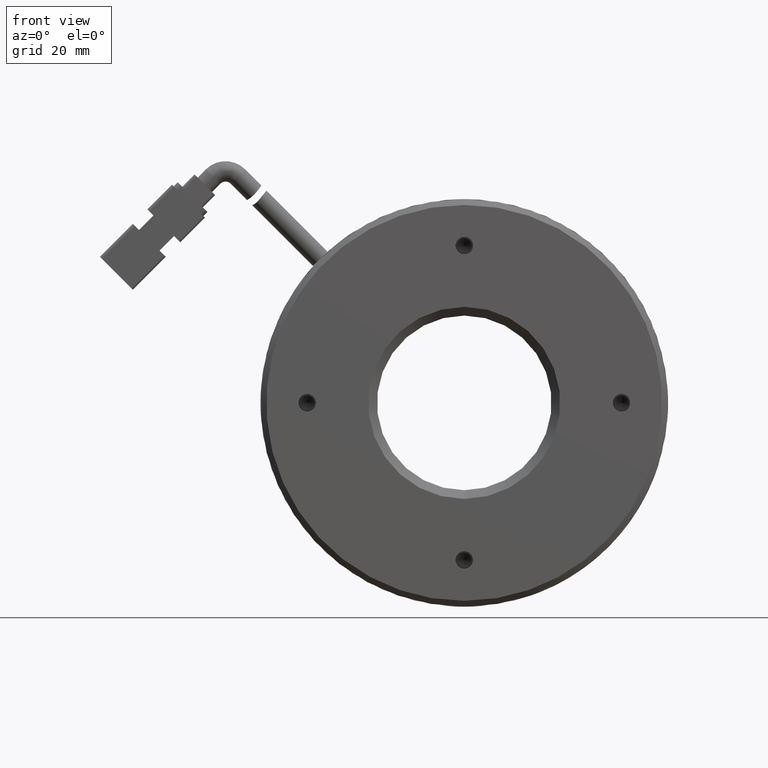
[diagram: clean part render]
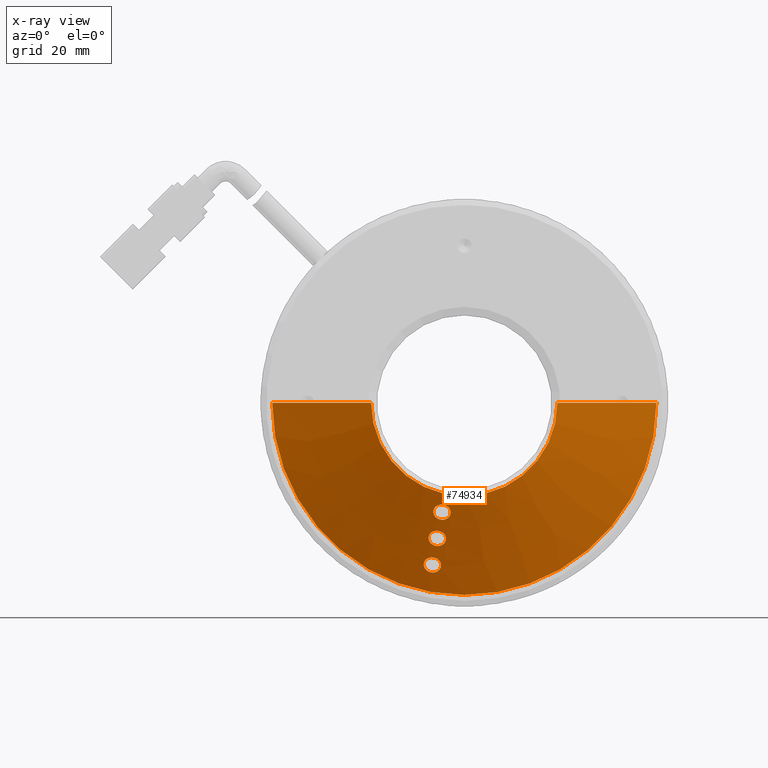
[diagram: x-ray — body ghosted, one internal face saturated and labeled with its STEP entity id]
A machine part, front view, then the same camera in x-ray: the body is ghosted and one INTERNAL B-rep face — a face not visible from any outside direction — is saturated and labeled: STEP entity #74934.
In plain terms, the highlighted conical surface has half-angle 60 deg.
Its self-contained STEP definition (entity closure, byte-faithful):
#136 = CARTESIAN_POINT ( 'NONE',  ( -7.134818961046084600, 35.42792446796054400, -17.50181382621849100 ) ) ;
#419 = CARTESIAN_POINT ( 'NONE',  ( -5.835235942650876400, 35.97558870384118300, -18.67824688774431200 ) ) ;
#717 = CARTESIAN_POINT ( 'NONE',  ( -7.330281434694323500, 36.91815542108513900, -20.09437774292183600 ) ) ;
#1441 = CARTESIAN_POINT ( 'NONE',  ( -9.597210679873386500, 39.15567558228984500, -23.55556102369209300 ) ) ;
#1742 = CARTESIAN_POINT ( 'NONE',  ( -8.342699614779457200, 38.09998667071315000, -21.97675561811360700 ) ) ;
#2202 = CARTESIAN_POINT ( 'NONE',  ( -7.664424419826295900, 38.07858563599663200, -22.07696449563100300 ) ) ;
#2372 = EDGE_CURVE ( 'NONE', #59536, #9245, #24715, .T. ) ;
#2513 = CARTESIAN_POINT ( 'NONE',  ( -6.801219585698977000, 39.05141233846484300, -23.92445161584404500 ) ) ;
#2988 = AXIS2_PLACEMENT_3D ( 'NONE', #30985, #79852, #38001 ) ;
#3112 = CARTESIAN_POINT ( 'NONE',  ( -7.984885076638433600, 40.85722114701429300, -26.90776473091874600 ) ) ;
#3202 = CARTESIAN_POINT ( 'NONE',  ( -3.499229287090496900, 44.16025315849288500, 0.0000000000000000000 ) ) ;
#3405 = CARTESIAN_POINT ( 'NONE',  ( -8.054081147811649200, 42.01560288985813700, -28.92922226809330900 ) ) ;
#3459 = VERTEX_POINT ( 'NONE', #77854 ) ;
#3863 = ORIENTED_EDGE ( 'NONE', *, *, #20131, .T. ) ;
#4420 = CARTESIAN_POINT ( 'NONE',  ( -8.820044337434856300, 36.28661239588996800, -18.61703804049265900 ) ) ;
#4495 = CARTESIAN_POINT ( 'NONE',  ( -9.958706143887457800, 42.13702085028782600, -28.77977847779328300 ) ) ;
#4796 = CARTESIAN_POINT ( 'NONE',  ( -9.888477392999005700, 40.98785993700204200, -26.75309681361257900 ) ) ;
#5663 = ORIENTED_EDGE ( 'NONE', *, *, #7230, .T. ) ;
#6202 = EDGE_CURVE ( 'NONE', #76830, #3459, #22799, .T. ) ;
#6907 = DIRECTION ( 'NONE',  ( 0.0000000000000000000, 0.0000000000000000000, 1.000000000000000000 ) ) ;
#7203 = CARTESIAN_POINT ( 'NONE',  ( -7.231740934485957300, 35.43188037752740600, -17.48840451115696800 ) ) ;
#7230 = EDGE_CURVE ( 'NONE', #36514, #52168, #45648, .T. ) ;
#7496 = CARTESIAN_POINT ( 'NONE',  ( -5.844527138647355200, 36.17138607678714400, -19.01881917347951000 ) ) ;
#8515 = CARTESIAN_POINT ( 'NONE',  ( -9.636231434524127300, 38.92079968229757700, -23.12451782596491200 ) ) ;
#9238 = CARTESIAN_POINT ( 'NONE',  ( -7.397682488388986700, 38.11765071484067800, -22.19429705028412100 ) ) ;
#9245 = VERTEX_POINT ( 'NONE', #54461 ) ;
#9545 = CARTESIAN_POINT ( 'NONE',  ( -6.956269785706669300, 39.18511632502548300, -24.13653327883732700 ) ) ;
#10131 = CARTESIAN_POINT ( 'NONE',  ( -7.666434507780802000, 41.02093198163615300, -27.24586748118485200 ) ) ;
#10432 = CARTESIAN_POINT ( 'NONE',  ( -8.580842164738918100, 42.18227298007646900, -29.13467800590320100 ) ) ;
#10933 = FACE_BOUND ( 'NONE', #50697, .T. ) ;
#11131 = CARTESIAN_POINT ( 'NONE',  ( -7.525924403843946600, 36.92968036261059700, -20.07668644359732100 ) ) ;
#11416 = CARTESIAN_POINT ( 'NONE',  ( -8.772283463292176000, 36.13925471230925300, -18.36520888411719100 ) ) ;
#11491 = CARTESIAN_POINT ( 'NONE',  ( -10.27591186427288200, 41.98449744351909600, -28.43533333416757000 ) ) ;
#11782 = CARTESIAN_POINT ( 'NONE',  ( -9.363155395464341200, 40.80827476721744800, -26.55495974701319600 ) ) ;
#11982 = EDGE_CURVE ( 'NONE', #63472, #53534, #58509, .T. ) ;
#14210 = CARTESIAN_POINT ( 'NONE',  ( -6.944053067716058800, 35.43016771637731900, -17.54431841771448200 ) ) ;
#14503 = CARTESIAN_POINT ( 'NONE',  ( -5.910814814206351500, 36.31706660563218500, -19.26486670139071900 ) ) ;
#15198 = CARTESIAN_POINT ( 'NONE',  ( -8.341238241009989500, 39.57152115109806100, -24.57989743092779000 ) ) ;
#15513 = CARTESIAN_POINT ( 'NONE',  ( -9.588483579784503200, 38.77326935888943600, -22.87279645554166800 ) ) ;
#16211 = AXIS2_PLACEMENT_3D ( 'NONE', #3202, #86790, #45004 ) ;
#16276 = CARTESIAN_POINT ( 'NONE',  ( -7.158223570835176900, 38.18535756942272700, -22.35382932966041400 ) ) ;
#16367 = LINE ( 'NONE', #66388, #53483 ) ;
#16426 = ORIENTED_EDGE ( 'NONE', *, *, #22820, .T. ) ;
#16557 = CARTESIAN_POINT ( 'NONE',  ( -7.227331719785564000, 39.34412912826318400, -24.37507153956667600 ) ) ;
#17175 = CARTESIAN_POINT ( 'NONE',  ( -7.477641183319874200, 41.28580833582930900, -27.73746467890255500 ) ) ;
#17258 = DIRECTION ( 'NONE',  ( -0.8660254037844380400, 0.5000000000000012200, 0.0000000000000000000 ) ) ;
#17461 = CARTESIAN_POINT ( 'NONE',  ( -8.972265547266410100, 42.23225576077131600, -29.15128971950499400 ) ) ;
#17608 = B_SPLINE_CURVE_WITH_KNOTS ( 'NONE', 3,
 ( #84718, #49982, #15198, #64043, #22196, #71049, #29208, #78074, #36215, #85028, #43272, #1441, #50286, #8515, #57300, #15513, #64359, #22509, #71359, #29510, #78385, #36512, #85318, #43580, #1742, #50583 ),
 .UNSPECIFIED., .F., .F.,
 ( 4, 2, 2, 2, 2, 2, 2, 2, 2, 2, 2, 2, 4 ),
 ( 1.734723475976807100E-018, 0.0002930632334641610700, 0.0005861264669283204100, 0.0008791897003924797500, 0.001172252933856639100, 0.001758379400784957800, 0.002344505867713276400, 0.002637569101177436400, 0.002930632334641596400, 0.003223695568105756400, 0.003516758801569916400, 0.004102885268498230300, 0.004689011735426544200 ),
 .UNSPECIFIED. ) ;
#18154 = CARTESIAN_POINT ( 'NONE',  ( -7.811397268832875400, 36.92218200804013900, -20.00402051089204400 ) ) ;
#18263 = CARTESIAN_POINT ( 'NONE',  ( -3.499229287090496900, 34.34529858226921600, -16.00000000000000000 ) ) ;
#18419 = CARTESIAN_POINT ( 'NONE',  ( -7.330269560271160500, 35.44111150950148200, -17.48318236584980000 ) ) ;
#18455 = CARTESIAN_POINT ( 'NONE',  ( -8.669626546088174700, 35.99331456922988100, -18.13166831285110400 ) ) ;
#18527 = CARTESIAN_POINT ( 'NONE',  ( -10.46344552251171000, 41.73090800281224200, -27.93734281797557300 ) ) ;
#18648 = LINE ( 'NONE', #72024, #55763 ) ;
#18779 = EDGE_CURVE ( 'NONE', #60880, #56974, #18648, .T. ) ;
#18803 = CARTESIAN_POINT ( 'NONE',  ( -8.972260680612185600, 40.75356784446615400, -26.54102497264570100 ) ) ;
#19805 = CARTESIAN_POINT ( 'NONE',  ( 29.50077071290950300, 44.16025315849288500, 4.041334437186266200E-015 ) ) ;
#20131 = EDGE_CURVE ( 'NONE', #3459, #76830, #30386, .T. ) ;
#20390 = DIRECTION ( 'NONE',  ( -0.0000000000000000000, 1.000000000000000000, -0.0000000000000000000 ) ) ;
#21179 = CARTESIAN_POINT ( 'NONE',  ( -6.668311287414807600, 35.45929853804344100, -17.64747004561191400 ) ) ;
#21486 = CARTESIAN_POINT ( 'NONE',  ( -6.032504885180835600, 36.45769033947498600, -19.49491575315323600 ) ) ;
#22196 = CARTESIAN_POINT ( 'NONE',  ( -8.626768796701361100, 39.56341288560427900, -24.50756994077756100 ) ) ;
#22509 = CARTESIAN_POINT ( 'NONE',  ( -9.485785283882764300, 38.62764470449094000, -22.63909434067238600 ) ) ;
#22799 = B_SPLINE_CURVE_WITH_KNOTS ( 'NONE', 3,
 ( #67101, #59782, #74069, #32220, #81106, #39261, #88064, #46268, #4495, #53325, #11491, #60379, #18527, #67395, #25543, #74358, #32527, #81406, #39549, #88363, #46569, #4796, #53614, #11782, #60669, #18803 ),
 .UNSPECIFIED., .F., .F.,
 ( 4, 2, 2, 2, 2, 2, 2, 2, 2, 2, 2, 2, 4 ),
 ( 6.938893903907228400E-018, 0.0002930578271093532800, 0.0005861156542186996200, 0.0008791734813280459100, 0.001172231308437392300, 0.001758346962656078200, 0.002344462616874763800, 0.002637520443984112000, 0.002930578271093459400, 0.003223636098202807600, 0.003516693925312155900, 0.004102809579530865800, 0.004688925233749576200 ),
 .UNSPECIFIED. ) ;
#22820 = EDGE_CURVE ( 'NONE', #52168, #36514, #80155, .T. ) ;
#23265 = CARTESIAN_POINT ( 'NONE',  ( -6.839686212761649600, 38.34973868844814900, -22.69153770168466600 ) ) ;
#23573 = CARTESIAN_POINT ( 'NONE',  ( -7.754147664557795100, 39.51018370422749400, -24.58087430060979600 ) ) ;
#24174 = CARTESIAN_POINT ( 'NONE',  ( -7.486993738077965900, 41.48131214421031400, -28.07817430934656900 ) ) ;
#24677 = ORIENTED_EDGE ( 'NONE', *, *, #50755, .T. ) ;
#24715 = CIRCLE ( 'NONE', #2988, 33.00000000000000000 ) ;
#25110 = CONICAL_SURFACE ( 'NONE', #16211, 33.00000000000000000, 1.047197551196596300 ) ;
#25168 = CARTESIAN_POINT ( 'NONE',  ( -8.077594262175408000, 36.88796774771292800, -19.88394670112454300 ) ) ;
#25464 = CARTESIAN_POINT ( 'NONE',  ( -8.515305365808799800, 35.85324267131051100, -17.92318435486460600 ) ) ;
#25543 = CARTESIAN_POINT ( 'NONE',  ( -10.45380792650218300, 41.53795748802211600, -27.59518956031464400 ) ) ;
#26170 = CIRCLE ( 'NONE', #40642, 33.00000000000000000 ) ;
#26308 = EDGE_CURVE ( 'NONE', #9245, #56974, #26170, .T. ) ;
#27628 = EDGE_CURVE ( 'NONE', #53534, #63472, #17608, .T. ) ;
#28218 = CARTESIAN_POINT ( 'NONE',  ( -6.419941929716928000, 35.51755482082845100, -17.79249484365658800 ) ) ;
#28507 = CARTESIAN_POINT ( 'NONE',  ( -6.202590963252638400, 36.58588178266640500, -19.69624127027116200 ) ) ;
#29040 = ORIENTED_EDGE ( 'NONE', *, *, #11982, .T. ) ;
#29208 = CARTESIAN_POINT ( 'NONE',  ( -8.893068066476315500, 39.52828403991475200, -24.38800744283997100 ) ) ;
#29457 = FACE_OUTER_BOUND ( 'NONE', #71801, .T. ) ;
#29510 = CARTESIAN_POINT ( 'NONE',  ( -9.331362802554423300, 38.48834443789093700, -22.43017704789253100 ) ) ;
#30241 = CARTESIAN_POINT ( 'NONE',  ( -6.650787240874836700, 38.61534518874739800, -23.18271139760629400 ) ) ;
#30323 = CARTESIAN_POINT ( 'NONE',  ( -8.145572834223706600, 38.08215760855076600, -21.98685034298141300 ) ) ;
#30386 = B_SPLINE_CURVE_WITH_KNOTS ( 'NONE', 3,
 ( #58667, #44316, #72691, #30846, #79709, #37854, #86698, #44912, #3112, #51931, #10131, #58961, #17175, #65987, #24174, #72997, #31142, #80012, #38156, #87000, #45212, #3405, #52236, #10432, #59281, #17461 ),
 .UNSPECIFIED., .F., .F.,
 ( 4, 2, 2, 2, 2, 2, 2, 2, 2, 2, 2, 2, 4 ),
 ( 0.004688925233749576200, 0.004981983275331287900, 0.005275041316912999600, 0.005568099358494711300, 0.005861157400076422200, 0.006447273483239843000, 0.007033389566403263800, 0.007326447607984964300, 0.007619505649566664700, 0.007912563691148365200, 0.008205621732730065600, 0.008791737815893478600, 0.009377853899056889900 ),
 .UNSPECIFIED. ) ;
#30552 = CARTESIAN_POINT ( 'NONE',  ( -8.145580091027735400, 39.56019882897461300, -24.59748133111041200 ) ) ;
#30763 = ORIENTED_EDGE ( 'NONE', *, *, #57740, .T. ) ;
#30846 = CARTESIAN_POINT ( 'NONE',  ( -8.585892401461247700, 40.74413815372718500, -26.60132575034032200 ) ) ;
#30985 = CARTESIAN_POINT ( 'NONE',  ( -3.499229287090496900, 44.16025315849288500, 0.0000000000000000000 ) ) ;
#31142 = CARTESIAN_POINT ( 'NONE',  ( -7.553262919261854300, 41.62724955656530300, -28.32406407623672400 ) ) ;
#32143 = CARTESIAN_POINT ( 'NONE',  ( -8.316201356678405400, 36.82778001967722000, -19.72016135141356200 ) ) ;
#32220 = CARTESIAN_POINT ( 'NONE',  ( -9.358725135621742900, 42.24086654187501500, -29.09145282215411800 ) ) ;
#32451 = CARTESIAN_POINT ( 'NONE',  ( -8.245558562438533900, 35.68272212985322500, -17.69115032565911200 ) ) ;
#32527 = CARTESIAN_POINT ( 'NONE',  ( -10.38762776292851000, 41.39121260961674400, -27.34975645102721100 ) ) ;
#33739 = CARTESIAN_POINT ( 'NONE',  ( -36.49922928709050000, 44.16025315849288500, 0.0000000000000000000 ) ) ;
#34990 = CARTESIAN_POINT ( 'NONE',  ( -8.145580091027735400, 39.56019882897461300, -24.59748133111041200 ) ) ;
#35023 = CARTESIAN_POINT ( 'NONE',  ( -3.499229287090496900, 44.16025315849288500, 0.0000000000000000000 ) ) ;
#35205 = CARTESIAN_POINT ( 'NONE',  ( -6.135907815155101200, 35.63259737799497600, -18.03865003651917200 ) ) ;
#35335 = CIRCLE ( 'NONE', #47918, 16.00000000000000000 ) ;
#35485 = ORIENTED_EDGE ( 'NONE', *, *, #35535, .T. ) ;
#35518 = CARTESIAN_POINT ( 'NONE',  ( -6.576565938180335600, 36.76802674782808800, -19.96118134265232800 ) ) ;
#35535 = EDGE_CURVE ( 'NONE', #59195, #86503, #35335, .T. ) ;
#36215 = CARTESIAN_POINT ( 'NONE',  ( -9.131810698912392600, 39.46693832980090400, -24.22487067074737500 ) ) ;
#36512 = CARTESIAN_POINT ( 'NONE',  ( -9.061425947833484400, 38.31937969486930500, -22.19727902939258300 ) ) ;
#36514 = VERTEX_POINT ( 'NONE', #18419 ) ;
#37251 = CARTESIAN_POINT ( 'NONE',  ( -6.660114980622328300, 38.81097401022805800, -23.52336049625847600 ) ) ;
#37854 = CARTESIAN_POINT ( 'NONE',  ( -8.310140011069465900, 40.77354735044775000, -26.70432806615929500 ) ) ;
#37998 = CARTESIAN_POINT ( 'NONE',  ( -7.330281434694323500, 36.91815542108513900, -20.09437774292183600 ) ) ;
#38001 = DIRECTION ( 'NONE',  ( 0.0000000000000000000, 0.0000000000000000000, 1.000000000000000000 ) ) ;
#38156 = CARTESIAN_POINT ( 'NONE',  ( -7.674878541548817900, 41.76852372157252100, -28.55373107214460400 ) ) ;
#39192 = CARTESIAN_POINT ( 'NONE',  ( -8.632966462834673400, 36.67894231524498800, -19.37366991171861100 ) ) ;
#39261 = CARTESIAN_POINT ( 'NONE',  ( -9.634196422052694300, 42.21398701929912500, -28.98701709443501100 ) ) ;
#39476 = CARTESIAN_POINT ( 'NONE',  ( -7.720883986127243600, 35.49834233554778300, -17.49572711765155800 ) ) ;
#39549 = CARTESIAN_POINT ( 'NONE',  ( -10.26638072420805500, 41.24661554871578800, -27.12197078396602000 ) ) ;
#39950 = ORIENTED_EDGE ( 'NONE', *, *, #6202, .T. ) ;
#40642 = AXIS2_PLACEMENT_3D ( 'NONE', #35023, #83833, #42058 ) ;
#42058 = DIRECTION ( 'NONE',  ( 0.0000000000000000000, 0.0000000000000000000, 1.000000000000000000 ) ) ;
#42246 = CARTESIAN_POINT ( 'NONE',  ( -5.874723182141069700, 35.87955863221520000, -18.50581730297734500 ) ) ;
#42549 = CARTESIAN_POINT ( 'NONE',  ( -7.132956565940896000, 36.90200203689546000, -20.10351587675827600 ) ) ;
#43272 = CARTESIAN_POINT ( 'NONE',  ( -9.448841121729902400, 39.31591196866028800, -23.87959306365853600 ) ) ;
#43580 = CARTESIAN_POINT ( 'NONE',  ( -8.536357404214129500, 38.13786812498432300, -22.00023153145696500 ) ) ;
#44022 = CARTESIAN_POINT ( 'NONE',  ( -7.759264276833271800, 38.07212995495643800, -22.04748109859835000 ) ) ;
#44316 = CARTESIAN_POINT ( 'NONE',  ( -8.873674652709631500, 40.74486146038157800, -26.54595724153548300 ) ) ;
#44330 = CARTESIAN_POINT ( 'NONE',  ( -6.726391139641021900, 38.95681053533604700, -23.76931203685273200 ) ) ;
#44912 = CARTESIAN_POINT ( 'NONE',  ( -8.061833874902601900, 40.83144078951470100, -26.84956464867231300 ) ) ;
#45004 = DIRECTION ( 'NONE',  ( -1.000000000000000000, 0.0000000000000000000, 0.0000000000000000000 ) ) ;
#45212 = CARTESIAN_POINT ( 'NONE',  ( -7.844861521007912200, 41.89761736357884600, -28.75454131545407000 ) ) ;
#45648 = B_SPLINE_CURVE_WITH_KNOTS ( 'NONE', 3,
 ( #55982, #7203, #136, #14210, #63044, #21179, #70049, #28218, #77057, #35205, #84005, #42246, #419, #49251, #7496, #56289, #14503, #63334, #21486, #70362, #28507, #77364, #35518, #84308, #42549, #717 ),
 .UNSPECIFIED., .F., .F.,
 ( 4, 2, 2, 2, 2, 2, 2, 2, 2, 2, 2, 2, 4 ),
 ( 0.004689166059409587300, 0.004982239416574296200, 0.005275312773739004200, 0.005568386130903713000, 0.005861459488068421900, 0.006447606202397844000, 0.007033752916727266000, 0.007326826273891971400, 0.007619899631056676800, 0.007912972988221382200, 0.008206046345386087600, 0.008792193059715489700, 0.009378339774044893600 ),
 .UNSPECIFIED. ) ;
#45902 = CARTESIAN_POINT ( 'NONE',  ( -7.330281434694323500, 36.91815542108513900, -20.09437774292183600 ) ) ;
#46188 = CARTESIAN_POINT ( 'NONE',  ( -8.820077435031068400, 36.42909150359177100, -18.87360244410487600 ) ) ;
#46268 = CARTESIAN_POINT ( 'NONE',  ( -9.881978935879354600, 42.16080417668218400, -28.83911086883594500 ) ) ;
#46489 = CARTESIAN_POINT ( 'NONE',  ( -7.330269560271160500, 35.44111150950148200, -17.48318236584980000 ) ) ;
#46569 = CARTESIAN_POINT ( 'NONE',  ( -10.09698316661454800, 41.11224758271678300, -26.92414803660014000 ) ) ;
#47918 = AXIS2_PLACEMENT_3D ( 'NONE', #62265, #20390, #69264 ) ;
#48665 = DIRECTION ( 'NONE',  ( -0.0000000000000000000, 1.000000000000000000, -0.0000000000000000000 ) ) ;
#49251 = CARTESIAN_POINT ( 'NONE',  ( -5.834874592023252800, 36.12146812338323800, -18.93289506742399600 ) ) ;
#49982 = CARTESIAN_POINT ( 'NONE',  ( -8.244246794417010800, 39.56820169625434100, -24.59295014811229100 ) ) ;
#50286 = CARTESIAN_POINT ( 'NONE',  ( -9.636208079253791000, 39.06382561245149500, -23.38076571316558700 ) ) ;
#50583 = CARTESIAN_POINT ( 'NONE',  ( -8.145572834223706600, 38.08215760855076600, -21.98685034298141300 ) ) ;
#50697 = EDGE_LOOP ( 'NONE', ( #3863, #39950 ) ) ;
#50755 = EDGE_CURVE ( 'NONE', #86503, #59536, #16367, .T. ) ;
#51031 = CARTESIAN_POINT ( 'NONE',  ( -7.483516001382779900, 38.10143376214134700, -22.15053951253010600 ) ) ;
#51339 = CARTESIAN_POINT ( 'NONE',  ( -6.848036021107777300, 39.09782146087099600, -23.99913336965994800 ) ) ;
#51393 = ORIENTED_EDGE ( 'NONE', *, *, #26308, .T. ) ;
#51931 = CARTESIAN_POINT ( 'NONE',  ( -7.777942369348540600, 40.94537596773861300, -27.09637579137323700 ) ) ;
#52168 = VERTEX_POINT ( 'NONE', #37998 ) ;
#52236 = CARTESIAN_POINT ( 'NONE',  ( -8.218639788130767300, 42.08140138830803100, -29.01854410728239500 ) ) ;
#53247 = CARTESIAN_POINT ( 'NONE',  ( -8.810330985303476600, 36.23721991395435500, -18.53081871510060100 ) ) ;
#53325 = CARTESIAN_POINT ( 'NONE',  ( -10.16494412637129200, 42.05520754145801700, -28.58757181342388900 ) ) ;
#53483 = VECTOR ( 'NONE', #17258, 999.9999999999998900 ) ;
#53534 = VERTEX_POINT ( 'NONE', #34990 ) ;
#53614 = CARTESIAN_POINT ( 'NONE',  ( -9.724451555240291300, 40.91727140166044300, -26.66648885165831100 ) ) ;
#54461 = CARTESIAN_POINT ( 'NONE',  ( -3.499229287090496900, 44.16025315849288500, -32.99999999999999300 ) ) ;
#55763 = VECTOR ( 'NONE', #78734, 999.9999999999998900 ) ;
#55780 = ORIENTED_EDGE ( 'NONE', *, *, #18779, .F. ) ;
#55982 = CARTESIAN_POINT ( 'NONE',  ( -7.330269560271160500, 35.44111150950148200, -17.48318236584980000 ) ) ;
#56289 = CARTESIAN_POINT ( 'NONE',  ( -5.882605460672086100, 36.26906796497378600, -19.18458709141312800 ) ) ;
#56974 = VERTEX_POINT ( 'NONE', #19805 ) ;
#57300 = CARTESIAN_POINT ( 'NONE',  ( -9.626529090713097100, 38.87129544467329400, -23.03836706468920800 ) ) ;
#57740 = EDGE_CURVE ( 'NONE', #60880, #59195, #60820, .T. ) ;
#57767 = CARTESIAN_POINT ( 'NONE',  ( -8.047009340383755900, 38.07324306810293300, -21.99189771071866800 ) ) ;
#58077 = CARTESIAN_POINT ( 'NONE',  ( -7.235184756712521400, 38.15947823893235800, -22.29568769676631100 ) ) ;
#58372 = CARTESIAN_POINT ( 'NONE',  ( -7.018060141160598100, 39.22654667737203500, -24.20015425496192300 ) ) ;
#58509 = B_SPLINE_CURVE_WITH_KNOTS ( 'NONE', 3,
 ( #85789, #57767, #64796, #44022, #2202, #51031, #9238, #58077, #16276, #65097, #23265, #72105, #30241, #79119, #37251, #86099, #44330, #2513, #51339, #9545, #58372, #16557, #65402, #23573, #72396, #30552 ),
 .UNSPECIFIED., .F., .F.,
 ( 4, 2, 2, 2, 2, 2, 2, 2, 2, 2, 2, 2, 4 ),
 ( 0.004689011735426544200, 0.004982075276816743900, 0.005275138818206943600, 0.005568202359597143300, 0.005861265900987342900, 0.006447392983767742300, 0.007033520066548141700, 0.007326583607938336200, 0.007619647149328530700, 0.007912710690718726900, 0.008205774232108921400, 0.008791901314889320800, 0.009378028397669721900 ),
 .UNSPECIFIED. ) ;
#58667 = CARTESIAN_POINT ( 'NONE',  ( -8.972260680612185600, 40.75356784446615400, -26.54102497264570100 ) ) ;
#58961 = CARTESIAN_POINT ( 'NONE',  ( -7.517047161694579300, 41.19028023223351900, -27.56474821164889400 ) ) ;
#59195 = VERTEX_POINT ( 'NONE', #18263 ) ;
#59281 = CARTESIAN_POINT ( 'NONE',  ( -8.774925660465868300, 42.21634654772807900, -29.16030247563792300 ) ) ;
#59536 = VERTEX_POINT ( 'NONE', #33739 ) ;
#59782 = CARTESIAN_POINT ( 'NONE',  ( -9.070935418455796700, 42.24021036147140500, -29.14678334473647300 ) ) ;
#60008 = CARTESIAN_POINT ( 'NONE',  ( -7.716657268335970000, 36.92772166851515400, -20.03402083766991700 ) ) ;
#60301 = CARTESIAN_POINT ( 'NONE',  ( -8.744163917873770200, 36.09046919826446500, -18.28537425968046600 ) ) ;
#60379 = CARTESIAN_POINT ( 'NONE',  ( -10.42440116533527400, 41.82319905896400100, -28.11189157661690900 ) ) ;
#60669 = CARTESIAN_POINT ( 'NONE',  ( -9.169432592118376100, 40.77098059989192100, -26.53116044208542600 ) ) ;
#60820 = CIRCLE ( 'NONE', #69118, 16.00000000000000000 ) ;
#60880 = VERTEX_POINT ( 'NONE', #71674 ) ;
#62265 = CARTESIAN_POINT ( 'NONE',  ( -3.499229287090496900, 34.34529858226921600, 0.0000000000000000000 ) ) ;
#62959 = EDGE_LOOP ( 'NONE', ( #29040, #84866 ) ) ;
#63044 = CARTESIAN_POINT ( 'NONE',  ( -6.849218776750116300, 35.43651870220125500, -17.57386012925509900 ) ) ;
#63334 = CARTESIAN_POINT ( 'NONE',  ( -5.985672332174727800, 36.41143758468528100, -19.42014904818974600 ) ) ;
#63472 = VERTEX_POINT ( 'NONE', #30323 ) ;
#64043 = CARTESIAN_POINT ( 'NONE',  ( -8.532005398424523400, 39.56919477274893600, -24.53743465140406600 ) ) ;
#64359 = CARTESIAN_POINT ( 'NONE',  ( -9.560355851910202300, 38.72453432878316400, -22.79293772941428000 ) ) ;
#64459 = FACE_BOUND ( 'NONE', #62959, .T. ) ;
#64796 = CARTESIAN_POINT ( 'NONE',  ( -7.950061926619254900, 38.06953448813883500, -22.00517069589421500 ) ) ;
#65097 = CARTESIAN_POINT ( 'NONE',  ( -6.951235920695389800, 38.27386549464315400, -22.54223184550335900 ) ) ;
#65402 = CARTESIAN_POINT ( 'NONE',  ( -7.391917226374187200, 39.40965566385040100, -24.46454344181105300 ) ) ;
#65987 = CARTESIAN_POINT ( 'NONE',  ( -7.477334295586961100, 41.43141176838563000, -27.99225044577678300 ) ) ;
#66388 = CARTESIAN_POINT ( 'NONE',  ( -36.49922928709050000, 44.16025315849288500, 0.0000000000000000000 ) ) ;
#67023 = CARTESIAN_POINT ( 'NONE',  ( -7.991981268106169300, 36.90222766240754700, -19.92881083350451400 ) ) ;
#67101 = CARTESIAN_POINT ( 'NONE',  ( -8.972265547266410100, 42.23225576077131600, -29.15128971950499400 ) ) ;
#67312 = CARTESIAN_POINT ( 'NONE',  ( -8.623022629202358400, 35.94504886861270200, -18.05803508646204100 ) ) ;
#67395 = CARTESIAN_POINT ( 'NONE',  ( -10.46350391740662500, 41.58753017167474300, -27.68129845754053200 ) ) ;
#68289 = CARTESIAN_POINT ( 'NONE',  ( -8.972265547266410100, 42.23225576077131600, -29.15128971950499400 ) ) ;
#69118 = AXIS2_PLACEMENT_3D ( 'NONE', #90471, #48665, #6907 ) ;
#69149 = EDGE_LOOP ( 'NONE', ( #5663, #16426 ) ) ;
#69264 = DIRECTION ( 'NONE',  ( 0.0000000000000000000, 0.0000000000000000000, 1.000000000000000000 ) ) ;
#70049 = CARTESIAN_POINT ( 'NONE',  ( -6.582469707248496800, 35.47555021058605000, -17.69120640223047800 ) ) ;
#70362 = CARTESIAN_POINT ( 'NONE',  ( -6.140777498610461300, 36.54464101699191800, -19.63251050862321300 ) ) ;
#71049 = CARTESIAN_POINT ( 'NONE',  ( -8.807417146168074100, 39.54287884313795600, -24.43268397821261600 ) ) ;
#71359 = CARTESIAN_POINT ( 'NONE',  ( -9.439152654744333400, 38.57959167646318800, -22.56534060389749600 ) ) ;
#71674 = CARTESIAN_POINT ( 'NONE',  ( 12.50077071290950300, 34.34529858226921600, 3.000384657911015500E-015 ) ) ;
#71801 = EDGE_LOOP ( 'NONE', ( #55780, #30763, #35485, #24677, #80832, #51393 ) ) ;
#72024 = CARTESIAN_POINT ( 'NONE',  ( 29.50077071290950300, 44.16025315849288500, 4.041334437186266200E-015 ) ) ;
#72105 = CARTESIAN_POINT ( 'NONE',  ( -6.690225489624652700, 38.51961004607047600, -23.01011325878428000 ) ) ;
#72396 = CARTESIAN_POINT ( 'NONE',  ( -7.948246476907944400, 39.54419307759764000, -24.60654370662862400 ) ) ;
#72691 = CARTESIAN_POINT ( 'NONE',  ( -8.776710764512415600, 40.74131448665065800, -26.55914105950964200 ) ) ;
#72997 = CARTESIAN_POINT ( 'NONE',  ( -7.525066686888016500, 41.57911717281666600, -28.24386661822790900 ) ) ;
#73568 = CARTESIAN_POINT ( 'NONE',  ( -19.49922928709049700, 34.34529858226921600, 0.0000000000000000000 ) ) ;
#73991 = CARTESIAN_POINT ( 'NONE',  ( -8.239558119238726200, 36.85086585794093800, -19.77988250786300700 ) ) ;
#74069 = CARTESIAN_POINT ( 'NONE',  ( -9.167934340074818800, 42.24344312035778200, -29.13377750342609200 ) ) ;
#74277 = CARTESIAN_POINT ( 'NONE',  ( -8.453820196773913100, 35.80914482696275100, -17.86107108812919400 ) ) ;
#74358 = CARTESIAN_POINT ( 'NONE',  ( -10.41576188419969100, 41.43990553832081500, -27.42963642224211200 ) ) ;
#74934 = ADVANCED_FACE ( 'NONE', ( #29457, #10933, #64459, #82952 ), #25110, .T. ) ;
#76830 = VERTEX_POINT ( 'NONE', #68289 ) ;
#77057 = CARTESIAN_POINT ( 'NONE',  ( -6.342962465180083800, 35.54357722558874900, -17.85055163518769900 ) ) ;
#77364 = CARTESIAN_POINT ( 'NONE',  ( -6.411942170604868700, 36.70288701318759900, -19.87149879086893400 ) ) ;
#77854 = CARTESIAN_POINT ( 'NONE',  ( -8.972260680612185600, 40.75356784446615400, -26.54102497264570100 ) ) ;
#78074 = CARTESIAN_POINT ( 'NONE',  ( -9.055117004977969200, 39.49043768957978500, -24.28436147732377000 ) ) ;
#78385 = CARTESIAN_POINT ( 'NONE',  ( -9.269833840845683100, 38.44459385137423600, -22.36787042335668800 ) ) ;
#78734 = DIRECTION ( 'NONE',  ( 0.8660254037844380400, 0.5000000000000012200, 1.060575238724906200E-016 ) ) ;
#79119 = CARTESIAN_POINT ( 'NONE',  ( -6.650458446017684500, 38.76106510038747600, -23.43743780524004800 ) ) ;
#79709 = CARTESIAN_POINT ( 'NONE',  ( -8.491048719281206300, 40.75066028792213800, -26.63077237924877500 ) ) ;
#79852 = DIRECTION ( 'NONE',  ( 0.0000000000000000000, -1.000000000000000000, 0.0000000000000000000 ) ) ;
#80012 = CARTESIAN_POINT ( 'NONE',  ( -7.628072873032746100, 41.72200803967305700, -28.47910796775713400 ) ) ;
#80155 = B_SPLINE_CURVE_WITH_KNOTS ( 'NONE', 3,
 ( #45902, #87686, #11131, #60008, #18154, #67023, #25168, #73991, #32143, #81032, #39192, #87984, #46188, #4420, #53247, #11416, #60301, #18455, #67312, #25464, #74277, #32451, #81328, #39476, #88284, #46489 ),
 .UNSPECIFIED., .F., .F.,
 ( 4, 2, 2, 2, 2, 2, 2, 2, 2, 2, 2, 2, 4 ),
 ( 6.938893903907228400E-018, 0.0002930728787131074500, 0.0005861457574262079600, 0.0008792186361393085200, 0.001172291514852409000, 0.001758437272278611600, 0.002344583029704813600, 0.002637655908417910400, 0.002930728787131007600, 0.003223801665844104300, 0.003516874544557201100, 0.004103020301983394600, 0.004689166059409587300 ),
 .UNSPECIFIED. ) ;
#80832 = ORIENTED_EDGE ( 'NONE', *, *, #2372, .T. ) ;
#81032 = CARTESIAN_POINT ( 'NONE',  ( -8.522182326654908400, 36.74810676073494900, -19.52676541455580100 ) ) ;
#81106 = CARTESIAN_POINT ( 'NONE',  ( -9.453504654442474100, 42.23491883447452000, -29.06168088051462900 ) ) ;
#81328 = CARTESIAN_POINT ( 'NONE',  ( -8.081750663655640200, 35.61049197831281500, -17.60547957432670400 ) ) ;
#81406 = CARTESIAN_POINT ( 'NONE',  ( -10.31303315421278900, 41.29451727753711800, -27.19581028463670700 ) ) ;
#82952 = FACE_BOUND ( 'NONE', #69149, .T. ) ;
#83833 = DIRECTION ( 'NONE',  ( 0.0000000000000000000, -1.000000000000000000, 0.0000000000000000000 ) ) ;
#84005 = CARTESIAN_POINT ( 'NONE',  ( -6.024294858702637300, 35.70893236351502500, -18.18768404699487800 ) ) ;
#84308 = CARTESIAN_POINT ( 'NONE',  ( -6.938833343956003900, 36.86807488721649400, -20.07778577662811500 ) ) ;
#84718 = CARTESIAN_POINT ( 'NONE',  ( -8.145580091027735400, 39.56019882897461300, -24.59748133111041200 ) ) ;
#84866 = ORIENTED_EDGE ( 'NONE', *, *, #27628, .T. ) ;
#85028 = CARTESIAN_POINT ( 'NONE',  ( -9.337946290433627900, 39.38599518186590100, -24.03217979655076100 ) ) ;
#85318 = CARTESIAN_POINT ( 'NONE',  ( -8.897485965570325600, 38.24812912199238500, -22.11104846362633900 ) ) ;
#85789 = CARTESIAN_POINT ( 'NONE',  ( -8.145572834223706600, 38.08215760855076600, -21.98685034298141300 ) ) ;
#86099 = CARTESIAN_POINT ( 'NONE',  ( -6.698189823691003600, 38.90873157149174900, -23.68908195269238000 ) ) ;
#86503 = VERTEX_POINT ( 'NONE', #73568 ) ;
#86698 = CARTESIAN_POINT ( 'NONE',  ( -8.224311872152551200, 40.78973793922195100, -26.74810169178204700 ) ) ;
#86790 = DIRECTION ( 'NONE',  ( 2.628368902995162100E-017, 1.000000000000000000, 0.0000000000000000000 ) ) ;
#87000 = CARTESIAN_POINT ( 'NONE',  ( -7.783086467579752600, 41.85605552257378300, -28.69099636450469100 ) ) ;
#87686 = CARTESIAN_POINT ( 'NONE',  ( -7.428943708001453300, 36.92623209999452200, -20.08980868346275600 ) ) ;
#87984 = CARTESIAN_POINT ( 'NONE',  ( -8.781152723396438400, 36.52027851959092400, -19.04876693762905800 ) ) ;
#88064 = CARTESIAN_POINT ( 'NONE',  ( -9.719872875019369500, 42.19916204139604300, -28.94246951123461600 ) ) ;
#88284 = CARTESIAN_POINT ( 'NONE',  ( -7.527326490139317100, 35.45957374330939200, -17.47273809228610000 ) ) ;
#88363 = CARTESIAN_POINT ( 'NONE',  ( -10.15854158846614300, 41.15575850963399100, -26.98658842557335900 ) ) ;
#90471 = CARTESIAN_POINT ( 'NONE',  ( -3.499229287090496900, 34.34529858226921600, 0.0000000000000000000 ) ) ;